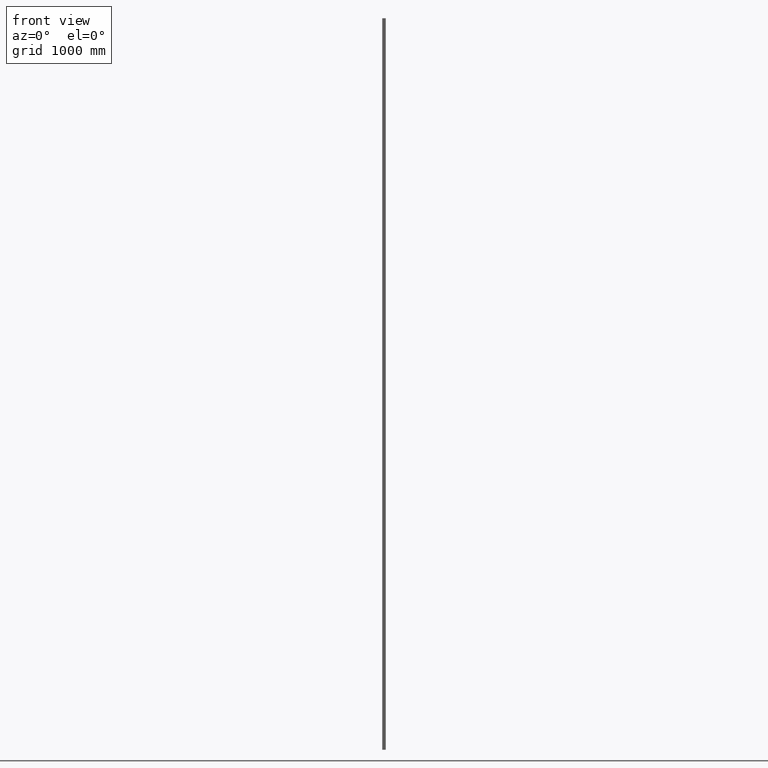
[diagram: clean part render]
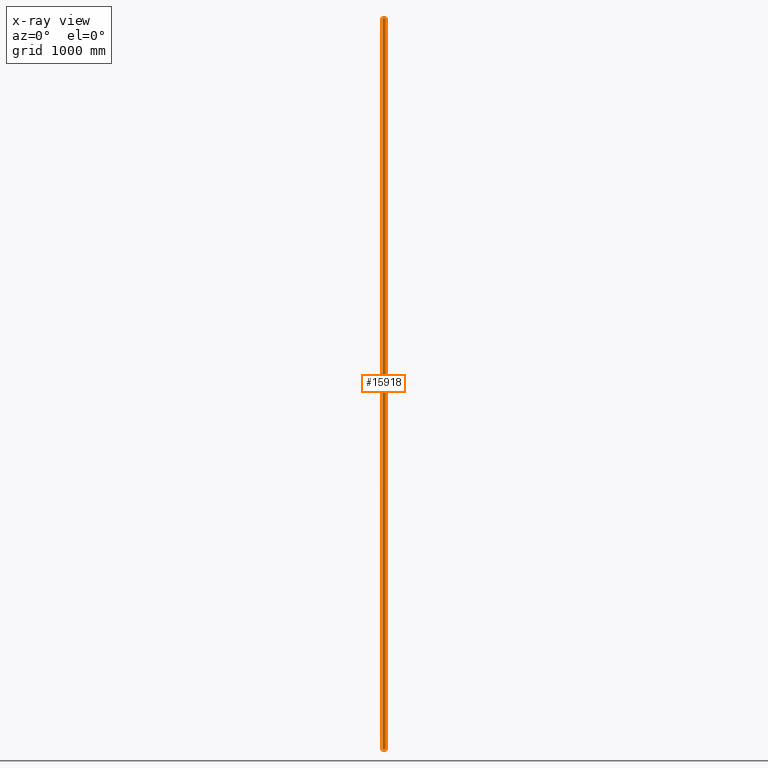
[diagram: x-ray — body ghosted, one internal face saturated and labeled with its STEP entity id]
A machine part, front view, then the same camera in x-ray: the body is ghosted and one INTERNAL B-rep face — a face not visible from any outside direction — is saturated and labeled: STEP entity #15918.
In plain terms, the highlighted planar face has unit normal (0, 1, -0).
Its self-contained STEP definition (entity closure, byte-faithful):
#214 = LINE ( 'NONE', #5959, #14135 ) ;
#635 = ORIENTED_EDGE ( 'NONE', *, *, #15628, .T. ) ;
#2280 = VERTEX_POINT ( 'NONE', #3567 ) ;
#2409 = VECTOR ( 'NONE', #4602, 1000.000000000000000 ) ;
#2592 = VERTEX_POINT ( 'NONE', #12370 ) ;
#3210 = DIRECTION ( 'NONE',  ( -1.000000000000000000, 1.445602896647339163E-16, 0.000000000000000000 ) ) ;
#3567 = CARTESIAN_POINT ( 'NONE',  ( 11.99999999999999822, 23.99999999999999645, -3000.000000000000000 ) ) ;
#3606 = EDGE_LOOP ( 'NONE', ( #7694, #5123, #6955, #635 ) ) ;
#3671 = CARTESIAN_POINT ( 'NONE',  ( -12.00000000000000178, 24.00000000000000000, 3000.000000000000000 ) ) ;
#3772 = VECTOR ( 'NONE', #14234, 1000.000000000000000 ) ;
#3856 = EDGE_CURVE ( 'NONE', #9298, #2280, #14375, .T. ) ;
#4444 = CARTESIAN_POINT ( 'NONE',  ( -12.00000000000000178, 24.00000000000000000, -3000.000000000000000 ) ) ;
#4602 = DIRECTION ( 'NONE',  ( 1.000000000000000000, -1.445602896647339163E-16, 0.000000000000000000 ) ) ;
#5123 = ORIENTED_EDGE ( 'NONE', *, *, #10560, .F. ) ;
#5768 = AXIS2_PLACEMENT_3D ( 'NONE', #13232, #8307, #3210 ) ;
#5959 = CARTESIAN_POINT ( 'NONE',  ( 11.99999999999999822, 23.99999999999999645, 3000.000000000000000 ) ) ;
#6955 = ORIENTED_EDGE ( 'NONE', *, *, #7705, .F. ) ;
#7694 = ORIENTED_EDGE ( 'NONE', *, *, #3856, .T. ) ;
#7705 = EDGE_CURVE ( 'NONE', #11856, #2592, #15739, .T. ) ;
#8307 = DIRECTION ( 'NONE',  ( 1.445602896647339163E-16, 1.000000000000000000, -0.000000000000000000 ) ) ;
#9082 = LINE ( 'NONE', #11221, #14846 ) ;
#9298 = VERTEX_POINT ( 'NONE', #4444 ) ;
#9410 = CARTESIAN_POINT ( 'NONE',  ( -12.00000000000000178, 24.00000000000000000, -3000.000000000000000 ) ) ;
#10225 = FACE_OUTER_BOUND ( 'NONE', #3606, .T. ) ;
#10560 = EDGE_CURVE ( 'NONE', #2592, #2280, #214, .T. ) ;
#11221 = CARTESIAN_POINT ( 'NONE',  ( -12.00000000000000178, 24.00000000000000000, 3000.000000000000000 ) ) ;
#11819 = CARTESIAN_POINT ( 'NONE',  ( -12.00000000000000178, 24.00000000000000000, 3000.000000000000000 ) ) ;
#11856 = VERTEX_POINT ( 'NONE', #3671 ) ;
#11994 = DIRECTION ( 'NONE',  ( -0.000000000000000000, -0.000000000000000000, -1.000000000000000000 ) ) ;
#12208 = DIRECTION ( 'NONE',  ( -0.000000000000000000, -0.000000000000000000, -1.000000000000000000 ) ) ;
#12370 = CARTESIAN_POINT ( 'NONE',  ( 11.99999999999999822, 23.99999999999999645, 3000.000000000000000 ) ) ;
#13009 = PLANE ( 'NONE',  #5768 ) ;
#13232 = CARTESIAN_POINT ( 'NONE',  ( -12.00000000000000178, 24.00000000000000000, 3000.000000000000000 ) ) ;
#14135 = VECTOR ( 'NONE', #11994, 1000.000000000000000 ) ;
#14234 = DIRECTION ( 'NONE',  ( 1.000000000000000000, -1.445602896647339163E-16, 0.000000000000000000 ) ) ;
#14375 = LINE ( 'NONE', #9410, #2409 ) ;
#14846 = VECTOR ( 'NONE', #12208, 1000.000000000000000 ) ;
#15628 = EDGE_CURVE ( 'NONE', #11856, #9298, #9082, .T. ) ;
#15739 = LINE ( 'NONE', #11819, #3772 ) ;
#15918 = ADVANCED_FACE ( 'NONE', ( #10225 ), #13009, .F. ) ;